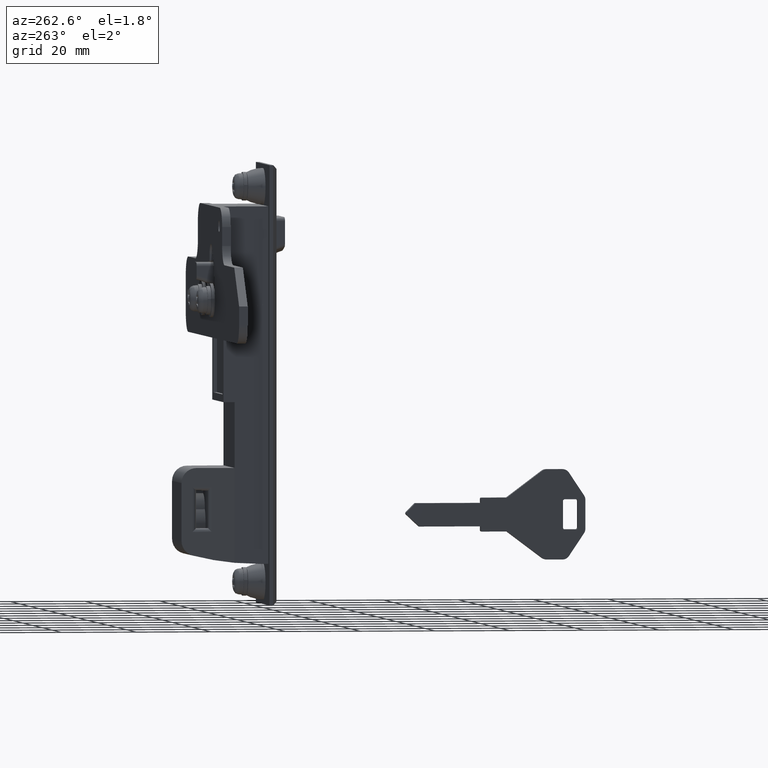
[diagram: clean part render]
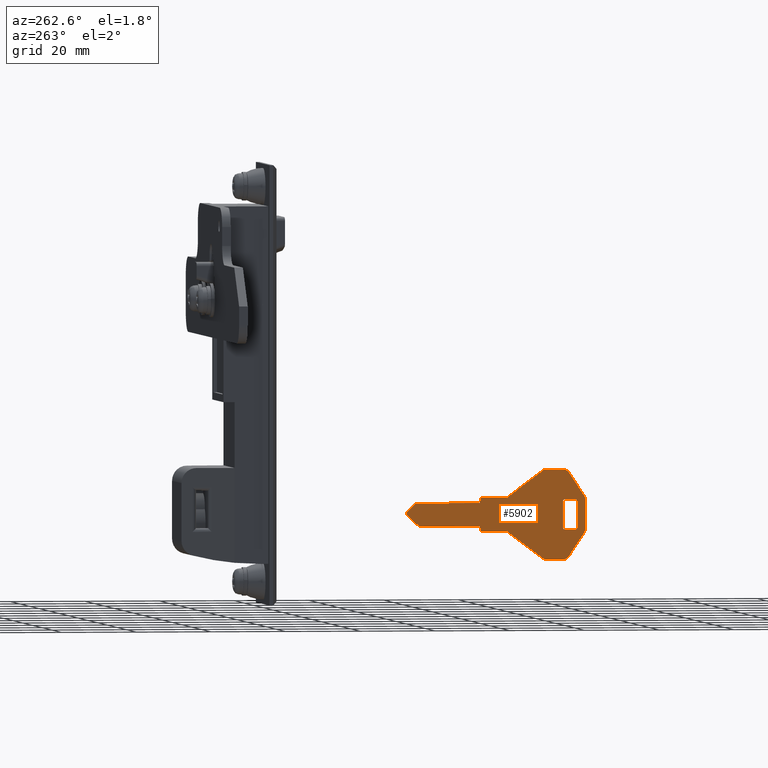
[diagram: same view with one face highlighted and labeled with its STEP entity id]
A machine part, auxiliary view. The second image highlights one B-rep face of the part: STEP entity #5902.
In plain terms, the highlighted face is a freeform B-spline surface patch.
Its self-contained STEP definition (entity closure, byte-faithful):
#4635=CARTESIAN_POINT('',(-95.798393555611284,0.949999999999989,-53.499805999999801));
#4636=VERTEX_POINT('',#4635);
#4642=CARTESIAN_POINT('',(-92.800807037985095,0.950000000000000,-53.499805999999801));
#4643=VERTEX_POINT('',#4642);
#4644=CARTESIAN_POINT('',(-95.798393555611284,0.949999999999989,-53.499805999999801));
#4645=CARTESIAN_POINT('',(-92.800807037985095,0.950000000000000,-53.499805999999801));
#4646=QUASI_UNIFORM_CURVE('',1,(#4644,#4645),.UNSPECIFIED.,.F.,.U.);
#4647=EDGE_CURVE('',#4636,#4643,#4646,.T.);
#4679=CARTESIAN_POINT('',(-92.298357555611290,0.950000000000000,-53.999800000000000));
#4680=VERTEX_POINT('',#4679);
#4681=CARTESIAN_POINT('',(-92.800807037985095,0.950000000000000,-53.499805999999900));
#4682=CARTESIAN_POINT('',(-92.592984946541307,0.950000000000000,-53.498787874682641));
#4683=CARTESIAN_POINT('',(-92.445671251076305,0.950000000000000,-53.645381644671943));
#4684=CARTESIAN_POINT('',(-92.298357555611290,0.950000000000000,-53.791975414661231));
#4685=CARTESIAN_POINT('',(-92.298357555611290,0.950000000000000,-53.999800000000000));
#4693=(BOUNDED_CURVE()B_SPLINE_CURVE(2,(#4681,#4682,#4683,#4684,#4685),.UNSPECIFIED.,.F.,.U.)B_SPLINE_CURVE_WITH_KNOTS((3,2,3),(0.0,0.500000000000000,1.0),.UNSPECIFIED.)CURVE()GEOMETRIC_REPRESENTATION_ITEM()RATIONAL_B_SPLINE_CURVE((1.0,0.923410149681597,1.0,0.923410149681597,1.0))REPRESENTATION_ITEM(''));
#4694=EDGE_CURVE('',#4643,#4680,#4693,.T.);
#4727=CARTESIAN_POINT('',(-92.298357555611290,0.950000000000000,-60.999800000000000));
#4728=VERTEX_POINT('',#4727);
#4729=CARTESIAN_POINT('',(-92.298357555611290,0.950000000000000,-53.999800000000000));
#4730=CARTESIAN_POINT('',(-92.298357555611290,0.950000000000000,-60.999800000000000));
#4731=QUASI_UNIFORM_CURVE('',1,(#4729,#4730),.UNSPECIFIED.,.F.,.U.);
#4732=EDGE_CURVE('',#4680,#4728,#4731,.T.);
#4764=CARTESIAN_POINT('',(-92.798393555611298,0.950000000000000,-61.499805999999801));
#4765=VERTEX_POINT('',#4764);
#4766=CARTESIAN_POINT('',(-92.298357555611275,0.950000000000000,-60.999800000000000));
#4767=CARTESIAN_POINT('',(-92.298357555611275,0.950000000000000,-61.206918053428090));
#4768=CARTESIAN_POINT('',(-92.444816529083639,0.950000000000000,-61.353368239994253));
#4769=CARTESIAN_POINT('',(-92.591275502556002,0.950000000000000,-61.499818426560402));
#4770=CARTESIAN_POINT('',(-92.798393555611298,0.950000000000000,-61.499805999999801));
#4778=(BOUNDED_CURVE()B_SPLINE_CURVE(2,(#4766,#4767,#4768,#4769,#4770),.UNSPECIFIED.,.F.,.U.)B_SPLINE_CURVE_WITH_KNOTS((3,2,3),(0.0,0.500000000000000,1.0),.UNSPECIFIED.)CURVE()GEOMETRIC_REPRESENTATION_ITEM()RATIONAL_B_SPLINE_CURVE((1.0,0.923873792396661,1.0,0.923873792396661,1.0))REPRESENTATION_ITEM(''));
#4779=EDGE_CURVE('',#4728,#4765,#4778,.T.);
#4812=CARTESIAN_POINT('',(-95.798393555611284,0.950000000000000,-61.499805999999801));
#4813=VERTEX_POINT('',#4812);
#4814=CARTESIAN_POINT('',(-92.798393555611298,0.950000000000000,-61.499805999999801));
#4815=CARTESIAN_POINT('',(-95.798393555611284,0.950000000000000,-61.499805999999801));
#4816=QUASI_UNIFORM_CURVE('',1,(#4814,#4815),.UNSPECIFIED.,.F.,.U.);
#4817=EDGE_CURVE('',#4765,#4813,#4816,.T.);
#4849=CARTESIAN_POINT('',(-96.298357555611290,0.950000000000000,-61.005805891998399));
#4850=VERTEX_POINT('',#4849);
#4851=CARTESIAN_POINT('',(-95.798393555611284,0.950000000000000,-61.499805999999801));
#4852=CARTESIAN_POINT('',(-96.292429234181554,0.950000000000000,-61.499805999999801));
#4853=CARTESIAN_POINT('',(-96.298357555611290,0.950000000000000,-61.005805891998399));
#4861=(BOUNDED_CURVE()B_SPLINE_CURVE(2,(#4851,#4852,#4853),.UNSPECIFIED.,.F.,.U.)CURVE()GEOMETRIC_REPRESENTATION_ITEM()QUASI_UNIFORM_CURVE()RATIONAL_B_SPLINE_CURVE((1.0,0.711336693836751,1.0))REPRESENTATION_ITEM(''));
#4862=EDGE_CURVE('',#4813,#4850,#4861,.T.);
#4893=CARTESIAN_POINT('',(-96.298357555611290,0.950000000000000,-53.993806108001301));
#4894=VERTEX_POINT('',#4893);
#4895=CARTESIAN_POINT('',(-96.298357555611290,0.950000000000000,-61.005805891998399));
#4896=CARTESIAN_POINT('',(-96.298357555611290,0.950000000000000,-53.993806108001301));
#4897=QUASI_UNIFORM_CURVE('',1,(#4895,#4896),.UNSPECIFIED.,.F.,.U.);
#4898=EDGE_CURVE('',#4850,#4894,#4897,.T.);
#4930=CARTESIAN_POINT('',(-96.298357555611290,0.950000000000000,-53.993806108001301));
#4931=CARTESIAN_POINT('',(-96.292429234181640,0.950000000000000,-53.499805999999801));
#4932=CARTESIAN_POINT('',(-95.798393555611284,0.950000000000000,-53.499805999999801));
#4940=(BOUNDED_CURVE()B_SPLINE_CURVE(2,(#4930,#4931,#4932),.UNSPECIFIED.,.F.,.U.)CURVE()GEOMETRIC_REPRESENTATION_ITEM()QUASI_UNIFORM_CURVE()RATIONAL_B_SPLINE_CURVE((1.0,0.711336693836683,1.0))REPRESENTATION_ITEM(''));
#4941=EDGE_CURVE('',#4894,#4636,#4940,.T.);
#4965=CARTESIAN_POINT('',(-70.298393555611298,0.950000000000000,-54.399806000000012));
#4966=VERTEX_POINT('',#4965);
#4967=CARTESIAN_POINT('',(-52.798351537436602,0.950000000000000,-54.399806000000012));
#4968=VERTEX_POINT('',#4967);
#4969=CARTESIAN_POINT('',(-70.298393555611298,0.950000000000000,-54.399806000000012));
#4970=CARTESIAN_POINT('',(-52.798351537436602,0.950000000000000,-54.399806000000012));
#4971=QUASI_UNIFORM_CURVE('',1,(#4969,#4970),.UNSPECIFIED.,.F.,.U.);
#4972=EDGE_CURVE('',#4966,#4968,#4971,.T.);
#5001=CARTESIAN_POINT('',(-70.298393555611298,0.950000000000000,-53.299800000000012));
#5002=VERTEX_POINT('',#5001);
#5003=CARTESIAN_POINT('',(-70.298393555611298,0.950000000000000,-53.299800000000012));
#5004=CARTESIAN_POINT('',(-70.298393555611298,0.950000000000000,-54.399806000000012));
#5005=QUASI_UNIFORM_CURVE('',1,(#5003,#5004),.UNSPECIFIED.,.F.,.U.);
#5006=EDGE_CURVE('',#5002,#4966,#5005,.T.);
#5038=CARTESIAN_POINT('',(-70.598393555611295,0.950000000000000,-52.999805999999801));
#5039=VERTEX_POINT('',#5038);
#5040=CARTESIAN_POINT('',(-70.298393555611298,0.950000000000000,-53.299800000000012));
#5041=CARTESIAN_POINT('',(-70.298393555611312,0.950000000000000,-52.999802999999915));
#5042=CARTESIAN_POINT('',(-70.598393555611295,0.950000000000000,-52.999805999999801));
#5050=(BOUNDED_CURVE()B_SPLINE_CURVE(2,(#5040,#5041,#5042),.UNSPECIFIED.,.F.,.U.)CURVE()GEOMETRIC_REPRESENTATION_ITEM()QUASI_UNIFORM_CURVE()RATIONAL_B_SPLINE_CURVE((1.0,0.707106781186547,1.0))REPRESENTATION_ITEM(''));
#5051=EDGE_CURVE('',#5002,#5039,#5050,.T.);
#5082=CARTESIAN_POINT('',(-77.298349555611097,0.950000000000000,-52.999805999999801));
#5083=VERTEX_POINT('',#5082);
#5084=CARTESIAN_POINT('',(-77.298349555611097,0.950000000000000,-52.999805999999801));
#5085=CARTESIAN_POINT('',(-70.598393555611295,0.950000000000000,-52.999805999999801));
#5086=QUASI_UNIFORM_CURVE('',1,(#5084,#5085),.UNSPECIFIED.,.F.,.U.);
#5087=EDGE_CURVE('',#5083,#5039,#5086,.T.);
#5110=CARTESIAN_POINT('',(-86.765024582653595,0.950000000000000,-45.899799979718203));
#5111=VERTEX_POINT('',#5110);
#5112=CARTESIAN_POINT('',(-86.765024582653595,0.950000000000000,-45.899799979718203));
#5113=CARTESIAN_POINT('',(-77.298349555611097,0.950000000000000,-52.999805999999801));
#5114=QUASI_UNIFORM_CURVE('',1,(#5112,#5113),.UNSPECIFIED.,.F.,.U.);
#5115=EDGE_CURVE('',#5111,#5083,#5114,.T.);
#5147=CARTESIAN_POINT('',(-87.960125579840991,0.950000000000000,-45.499805999999801));
#5148=VERTEX_POINT('',#5147);
#5149=CARTESIAN_POINT('',(-86.765024582653623,0.950000000000000,-45.899799979718253));
#5150=CARTESIAN_POINT('',(-87.296181470405571,0.950000000000000,-45.501432327931361));
#5151=CARTESIAN_POINT('',(-87.960125579840991,0.950000000000000,-45.499805999999900));
#5159=(BOUNDED_CURVE()B_SPLINE_CURVE(2,(#5149,#5150,#5151),.UNSPECIFIED.,.F.,.U.)CURVE()GEOMETRIC_REPRESENTATION_ITEM()QUASI_UNIFORM_CURVE()RATIONAL_B_SPLINE_CURVE((1.0,0.949069887531697,1.0))REPRESENTATION_ITEM(''));
#5160=EDGE_CURVE('',#5111,#5148,#5159,.T.);
#5191=CARTESIAN_POINT('',(-92.228021705301302,0.950000000000000,-45.499800000000000));
#5192=VERTEX_POINT('',#5191);
#5193=CARTESIAN_POINT('',(-92.228021705301302,0.950000000000000,-45.499800000000000));
#5194=CARTESIAN_POINT('',(-87.960125579840991,0.950000000000000,-45.499805999999801));
#5195=QUASI_UNIFORM_CURVE('',1,(#5193,#5194),.UNSPECIFIED.,.F.,.U.);
#5196=EDGE_CURVE('',#5192,#5148,#5195,.T.);
#5228=CARTESIAN_POINT('',(-93.892126555611298,0.950000000000000,-46.390405999999800));
#5229=VERTEX_POINT('',#5228);
#5230=CARTESIAN_POINT('',(-92.228021705301302,0.950000000000000,-45.499800000000000));
#5231=CARTESIAN_POINT('',(-93.298394163922907,0.950000000000000,-45.499800000000000));
#5232=CARTESIAN_POINT('',(-93.892126555611298,0.950000000000000,-46.390405999999800));
#5240=(BOUNDED_CURVE()B_SPLINE_CURVE(2,(#5230,#5231,#5232),.UNSPECIFIED.,.F.,.U.)CURVE()GEOMETRIC_REPRESENTATION_ITEM()QUASI_UNIFORM_CURVE()RATIONAL_B_SPLINE_CURVE((1.0,0.881673692472397,1.0))REPRESENTATION_ITEM(''));
#5241=EDGE_CURVE('',#5192,#5229,#5240,.T.);
#5272=CARTESIAN_POINT('',(-97.962494555611286,0.950000000000000,-52.495956999999798));
#5273=VERTEX_POINT('',#5272);
#5274=CARTESIAN_POINT('',(-97.962494555611286,0.950000000000000,-52.495956999999798));
#5275=CARTESIAN_POINT('',(-93.892126555611298,0.950000000000000,-46.390405999999800));
#5276=QUASI_UNIFORM_CURVE('',1,(#5274,#5275),.UNSPECIFIED.,.F.,.U.);
#5277=EDGE_CURVE('',#5273,#5229,#5276,.T.);
#5309=CARTESIAN_POINT('',(-98.298393555611284,0.950000000000000,-53.605404775455099));
#5310=VERTEX_POINT('',#5309);
#5311=CARTESIAN_POINT('',(-97.962494555611244,0.950000000000000,-52.495956999999827));
#5312=CARTESIAN_POINT('',(-98.298408359187377,0.950000000000000,-52.999827622837401));
#5313=CARTESIAN_POINT('',(-98.298393555611554,0.950000000000000,-53.605404775455099));
#5321=(BOUNDED_CURVE()B_SPLINE_CURVE(2,(#5311,#5312,#5313),.UNSPECIFIED.,.F.,.U.)CURVE()GEOMETRIC_REPRESENTATION_ITEM()QUASI_UNIFORM_CURVE()RATIONAL_B_SPLINE_CURVE((1.0,0.957088473519522,1.0))REPRESENTATION_ITEM(''));
#5322=EDGE_CURVE('',#5273,#5310,#5321,.T.);
#5353=CARTESIAN_POINT('',(-98.298393555611284,0.950000000000000,-61.394255224535698));
#5354=VERTEX_POINT('',#5353);
#5355=CARTESIAN_POINT('',(-98.298393555611284,0.950000000000000,-61.394255224535698));
#5356=CARTESIAN_POINT('',(-98.298393555611284,0.950000000000000,-53.605404775455099));
#5357=QUASI_UNIFORM_CURVE('',1,(#5355,#5356),.UNSPECIFIED.,.F.,.U.);
#5358=EDGE_CURVE('',#5354,#5310,#5357,.T.);
#5390=CARTESIAN_POINT('',(-97.962494555611286,0.950000000000000,-62.503654999999803));
#5391=VERTEX_POINT('',#5390);
#5392=CARTESIAN_POINT('',(-98.298393555611284,0.950000000000000,-61.394255224535698));
#5393=CARTESIAN_POINT('',(-98.298393555611284,0.950000000000000,-61.999806095248069));
#5394=CARTESIAN_POINT('',(-97.962494555611130,0.950000000000000,-62.503654999999689));
#5402=(BOUNDED_CURVE()B_SPLINE_CURVE(2,(#5392,#5393,#5394),.UNSPECIFIED.,.F.,.U.)CURVE()GEOMETRIC_REPRESENTATION_ITEM()QUASI_UNIFORM_CURVE()RATIONAL_B_SPLINE_CURVE((1.0,0.957092080209610,1.0))REPRESENTATION_ITEM(''));
#5403=EDGE_CURVE('',#5354,#5391,#5402,.T.);
#5434=CARTESIAN_POINT('',(-93.892126578990215,0.950000000000000,-68.609205964931604));
#5435=VERTEX_POINT('',#5434);
#5436=CARTESIAN_POINT('',(-93.892126578990215,0.950000000000000,-68.609205964931604));
#5437=CARTESIAN_POINT('',(-97.962494555611286,0.950000000000000,-62.503654999999803));
#5438=QUASI_UNIFORM_CURVE('',1,(#5436,#5437),.UNSPECIFIED.,.F.,.U.);
#5439=EDGE_CURVE('',#5435,#5391,#5438,.T.);
#5471=CARTESIAN_POINT('',(-92.228023152415901,0.950000000000000,-69.499805999999808));
#5472=VERTEX_POINT('',#5471);
#5473=CARTESIAN_POINT('',(-93.892126578990187,0.950000000000000,-68.609205964931590));
#5474=CARTESIAN_POINT('',(-93.298392463527463,0.950000000000000,-69.499807032922277));
#5475=CARTESIAN_POINT('',(-92.228023152415901,0.950000000000000,-69.499805999999808));
#5483=(BOUNDED_CURVE()B_SPLINE_CURVE(2,(#5473,#5474,#5475),.UNSPECIFIED.,.F.,.U.)CURVE()GEOMETRIC_REPRESENTATION_ITEM()QUASI_UNIFORM_CURVE()RATIONAL_B_SPLINE_CURVE((1.0,0.881674383955658,1.0))REPRESENTATION_ITEM(''));
#5484=EDGE_CURVE('',#5435,#5472,#5483,.T.);
#5515=CARTESIAN_POINT('',(-87.965060555611288,0.950000000000000,-69.499805999999808));
#5516=VERTEX_POINT('',#5515);
#5517=CARTESIAN_POINT('',(-87.965060555611288,0.950000000000000,-69.499805999999808));
#5518=CARTESIAN_POINT('',(-92.228023152415901,0.950000000000000,-69.499805999999808));
#5519=QUASI_UNIFORM_CURVE('',1,(#5517,#5518),.UNSPECIFIED.,.F.,.U.);
#5520=EDGE_CURVE('',#5516,#5472,#5519,.T.);
#5552=CARTESIAN_POINT('',(-86.771592697349803,0.950000000000000,-69.104705106131206));
#5553=VERTEX_POINT('',#5552);
#5554=CARTESIAN_POINT('',(-87.965060555611288,0.950000000000000,-69.499805999999822));
#5555=CARTESIAN_POINT('',(-87.302926994955001,0.950000000000000,-69.499805999999822));
#5556=CARTESIAN_POINT('',(-86.771592697349817,0.950000000000000,-69.104705106131178));
#5564=(BOUNDED_CURVE()B_SPLINE_CURVE(2,(#5554,#5555,#5556),.UNSPECIFIED.,.F.,.U.)CURVE()GEOMETRIC_REPRESENTATION_ITEM()QUASI_UNIFORM_CURVE()RATIONAL_B_SPLINE_CURVE((1.0,0.949330787030976,1.0))REPRESENTATION_ITEM(''));
#5565=EDGE_CURVE('',#5516,#5553,#5564,.T.);
#5596=CARTESIAN_POINT('',(-77.298393555611298,0.950000000000000,-61.999805999999801));
#5597=VERTEX_POINT('',#5596);
#5598=CARTESIAN_POINT('',(-77.298393555611298,0.950000000000000,-61.999805999999801));
#5599=CARTESIAN_POINT('',(-86.771592697349803,0.950000000000000,-69.104705106131206));
#5600=QUASI_UNIFORM_CURVE('',1,(#5598,#5599),.UNSPECIFIED.,.F.,.U.);
#5601=EDGE_CURVE('',#5597,#5553,#5600,.T.);
#5624=CARTESIAN_POINT('',(-70.598393555611295,0.950000000000000,-61.999805999999801));
#5625=VERTEX_POINT('',#5624);
#5626=CARTESIAN_POINT('',(-70.598393555611295,0.950000000000000,-61.999805999999801));
#5627=CARTESIAN_POINT('',(-77.298393555611298,0.950000000000000,-61.999805999999801));
#5628=QUASI_UNIFORM_CURVE('',1,(#5626,#5627),.UNSPECIFIED.,.F.,.U.);
#5629=EDGE_CURVE('',#5625,#5597,#5628,.T.);
#5661=CARTESIAN_POINT('',(-70.298393555611298,0.950000000000000,-61.704447440585703));
#5662=VERTEX_POINT('',#5661);
#5663=CARTESIAN_POINT('',(-70.598393555611295,0.950000000000000,-61.999805999999822));
#5664=CARTESIAN_POINT('',(-70.302999091245979,0.950000000000000,-61.999805999999815));
#5665=CARTESIAN_POINT('',(-70.298393555611298,0.950000000000000,-61.704447440585703));
#5673=(BOUNDED_CURVE()B_SPLINE_CURVE(2,(#5663,#5664,#5665),.UNSPECIFIED.,.F.,.U.)CURVE()GEOMETRIC_REPRESENTATION_ITEM()QUASI_UNIFORM_CURVE()RATIONAL_B_SPLINE_CURVE((1.0,0.712597760748028,1.0))REPRESENTATION_ITEM(''));
#5674=EDGE_CURVE('',#5625,#5662,#5673,.T.);
#5705=CARTESIAN_POINT('',(-70.298393555611298,0.950000000000000,-60.599805999999802));
#5706=VERTEX_POINT('',#5705);
#5707=CARTESIAN_POINT('',(-70.298393555611298,0.950000000000000,-60.599805999999802));
#5708=CARTESIAN_POINT('',(-70.298393555611298,0.950000000000000,-61.704447440585703));
#5709=QUASI_UNIFORM_CURVE('',1,(#5707,#5708),.UNSPECIFIED.,.F.,.U.);
#5710=EDGE_CURVE('',#5706,#5662,#5709,.T.);
#5733=CARTESIAN_POINT('',(-53.798393555611298,0.950000000000000,-60.599805999999802));
#5734=VERTEX_POINT('',#5733);
#5735=CARTESIAN_POINT('',(-53.798393555611298,0.950000000000000,-60.599805999999802));
#5736=CARTESIAN_POINT('',(-70.298393555611298,0.950000000000000,-60.599805999999802));
#5737=QUASI_UNIFORM_CURVE('',1,(#5735,#5736),.UNSPECIFIED.,.F.,.U.);
#5738=EDGE_CURVE('',#5734,#5706,#5737,.T.);
#5761=CARTESIAN_POINT('',(-50.459559099055298,0.950000000000000,-57.467516903146297));
#5762=VERTEX_POINT('',#5761);
#5763=CARTESIAN_POINT('',(-50.459559099055298,0.950000000000000,-57.467516903146297));
#5764=CARTESIAN_POINT('',(-53.798393555611298,0.950000000000000,-60.599805999999802));
#5765=QUASI_UNIFORM_CURVE('',1,(#5763,#5764),.UNSPECIFIED.,.F.,.U.);
#5766=EDGE_CURVE('',#5762,#5734,#5765,.T.);
#5798=CARTESIAN_POINT('',(-50.445339136737402,0.950000000000000,-56.745712417608900));
#5799=VERTEX_POINT('',#5798);
#5800=CARTESIAN_POINT('',(-50.459559099055312,0.950000000000000,-57.467516903146297));
#5801=CARTESIAN_POINT('',(-50.302656697639563,0.950000000000000,-57.322953828542289));
#5802=CARTESIAN_POINT('',(-50.298454459223578,0.950000000000000,-57.109648443468942));
#5803=CARTESIAN_POINT('',(-50.294252220807593,0.950000000000000,-56.896343058395601));
#5804=CARTESIAN_POINT('',(-50.445339136737367,0.950000000000000,-56.745712417608878));
#5812=(BOUNDED_CURVE()B_SPLINE_CURVE(2,(#5800,#5801,#5802,#5803,#5804),.UNSPECIFIED.,.F.,.U.)B_SPLINE_CURVE_WITH_KNOTS((3,2,3),(0.0,0.500000000000000,1.0),.UNSPECIFIED.)CURVE()GEOMETRIC_REPRESENTATION_ITEM()RATIONAL_B_SPLINE_CURVE((1.0,0.919769243121799,1.0,0.919769243121799,1.0))REPRESENTATION_ITEM(''));
#5813=EDGE_CURVE('',#5762,#5799,#5812,.T.);
#5846=CARTESIAN_POINT('',(-52.798351537436602,0.950000000000000,-54.399806000000012));
#5847=CARTESIAN_POINT('',(-50.445339136737402,0.950000000000000,-56.745712417608900));
#5848=QUASI_UNIFORM_CURVE('',1,(#5846,#5847),.UNSPECIFIED.,.F.,.U.);
#5849=EDGE_CURVE('',#4968,#5799,#5848,.T.);
#5861=CARTESIAN_POINT('',(-100.695990420442700,0.949999999999989,-44.301001152391123));
#5862=CARTESIAN_POINT('',(-47.900856306933520,0.949999999999989,-44.301001152391123));
#5863=CARTESIAN_POINT('',(-100.695990420442700,0.949999999999989,-70.698610426604859));
#5864=CARTESIAN_POINT('',(-47.900856306933520,0.949999999999989,-70.698610426604859));
#5865=B_SPLINE_SURFACE_WITH_KNOTS('',1,1,((#5861,#5863),(#5862,#5864)),.UNSPECIFIED.,.F.,.F.,.U.,(2,2),(2,2),(0.0,52.795134113509150),(0.0,26.397609274213739),.UNSPECIFIED.);
#5866=ORIENTED_EDGE('',*,*,#5849,.T.);
#5867=ORIENTED_EDGE('',*,*,#5813,.F.);
#5868=ORIENTED_EDGE('',*,*,#5766,.T.);
#5869=ORIENTED_EDGE('',*,*,#5738,.T.);
#5870=ORIENTED_EDGE('',*,*,#5710,.T.);
#5871=ORIENTED_EDGE('',*,*,#5674,.F.);
#5872=ORIENTED_EDGE('',*,*,#5629,.T.);
#5873=ORIENTED_EDGE('',*,*,#5601,.T.);
#5874=ORIENTED_EDGE('',*,*,#5565,.F.);
#5875=ORIENTED_EDGE('',*,*,#5520,.T.);
#5876=ORIENTED_EDGE('',*,*,#5484,.F.);
#5877=ORIENTED_EDGE('',*,*,#5439,.T.);
#5878=ORIENTED_EDGE('',*,*,#5403,.F.);
#5879=ORIENTED_EDGE('',*,*,#5358,.T.);
#5880=ORIENTED_EDGE('',*,*,#5322,.F.);
#5881=ORIENTED_EDGE('',*,*,#5277,.T.);
#5882=ORIENTED_EDGE('',*,*,#5241,.F.);
#5883=ORIENTED_EDGE('',*,*,#5196,.T.);
#5884=ORIENTED_EDGE('',*,*,#5160,.F.);
#5885=ORIENTED_EDGE('',*,*,#5115,.T.);
#5886=ORIENTED_EDGE('',*,*,#5087,.T.);
#5887=ORIENTED_EDGE('',*,*,#5051,.F.);
#5888=ORIENTED_EDGE('',*,*,#5006,.T.);
#5889=ORIENTED_EDGE('',*,*,#4972,.T.);
#5890=EDGE_LOOP('',(#5866,#5867,#5868,#5869,#5870,#5871,#5872,#5873,#5874,#5875,#5876,#5877,#5878,#5879,#5880,#5881,#5882,#5883,#5884,#5885,#5886,#5887,#5888,#5889));
#5891=FACE_OUTER_BOUND('',#5890,.T.);
#5892=ORIENTED_EDGE('',*,*,#4941,.F.);
#5893=ORIENTED_EDGE('',*,*,#4898,.F.);
#5894=ORIENTED_EDGE('',*,*,#4862,.F.);
#5895=ORIENTED_EDGE('',*,*,#4817,.F.);
#5896=ORIENTED_EDGE('',*,*,#4779,.F.);
#5897=ORIENTED_EDGE('',*,*,#4732,.F.);
#5898=ORIENTED_EDGE('',*,*,#4694,.F.);
#5899=ORIENTED_EDGE('',*,*,#4647,.F.);
#5900=EDGE_LOOP('',(#5892,#5893,#5894,#5895,#5896,#5897,#5898,#5899));
#5901=FACE_BOUND('',#5900,.T.);
#5902=ADVANCED_FACE('',(#5891,#5901),#5865,.T.);